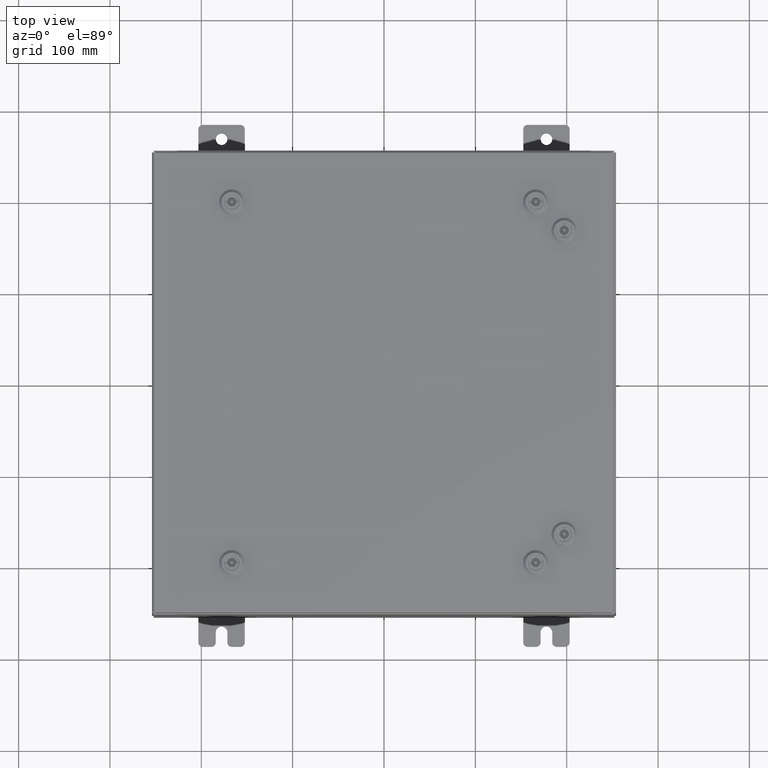
[diagram: clean part render]
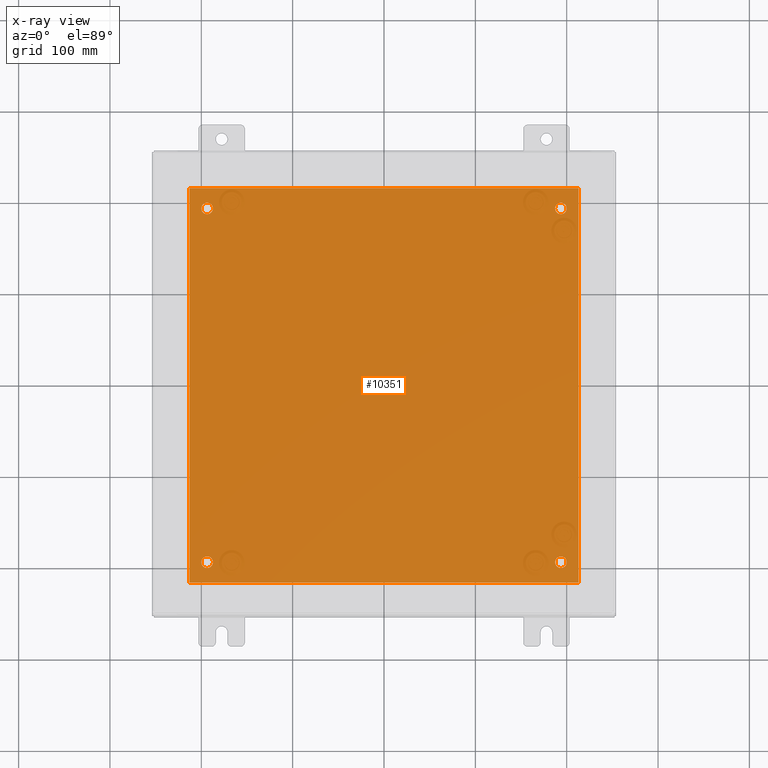
[diagram: x-ray — body ghosted, one internal face saturated and labeled with its STEP entity id]
A machine part, top view, then the same camera in x-ray: the body is ghosted and one INTERNAL B-rep face — a face not visible from any outside direction — is saturated and labeled: STEP entity #10351.
In plain terms, the highlighted planar face has unit normal (0, 0, -1).
Its self-contained STEP definition (entity closure, byte-faithful):
#15 = VERTEX_POINT ( 'NONE', #35535 ) ;
#112 = ORIENTED_EDGE ( 'NONE', *, *, #51335, .T. ) ;
#413 = AXIS2_PLACEMENT_3D ( 'NONE', #30554, #1214, #35512 ) ;
#1214 = DIRECTION ( 'NONE',  ( -0.0000000000000000000, -0.0000000000000000000, 1.000000000000000000 ) ) ;
#1228 = VECTOR ( 'NONE', #14413, 39.37007874015748100 ) ;
#2297 = AXIS2_PLACEMENT_3D ( 'NONE', #19040, #53398, #24009 ) ;
#2856 = CARTESIAN_POINT ( 'NONE',  ( 0.0000000000000000000, 0.0000000000000000000, -0.1039999999999999800 ) ) ;
#4345 = ORIENTED_EDGE ( 'NONE', *, *, #31679, .T. ) ;
#5401 = FACE_BOUND ( 'NONE', #41860, .T. ) ;
#5861 = VERTEX_POINT ( 'NONE', #35773 ) ;
#6869 = LINE ( 'NONE', #55469, #31421 ) ;
#7785 = DIRECTION ( 'NONE',  ( 0.0000000000000000000, 0.0000000000000000000, -1.000000000000000000 ) ) ;
#9206 = VERTEX_POINT ( 'NONE', #40431 ) ;
#9471 = LINE ( 'NONE', #13488, #50135 ) ;
#9837 = CARTESIAN_POINT ( 'NONE',  ( -7.625000000000001800, 7.625000000000000900, -0.1039999999999999800 ) ) ;
#10346 = AXIS2_PLACEMENT_3D ( 'NONE', #9837, #44169, #14768 ) ;
#10351 = ADVANCED_FACE ( 'NONE', ( #31512, #5401, #33049, #56088, #43041 ), #32208, .T. ) ;
#10611 = LINE ( 'NONE', #52810, #59708 ) ;
#10802 = DIRECTION ( 'NONE',  ( -0.0000000000000000000, -0.0000000000000000000, 1.000000000000000000 ) ) ;
#11253 = ORIENTED_EDGE ( 'NONE', *, *, #47111, .T. ) ;
#12789 = CARTESIAN_POINT ( 'NONE',  ( -7.625000000000001800, -7.625000000000000900, -0.1039999999999999800 ) ) ;
#13124 = ORIENTED_EDGE ( 'NONE', *, *, #24330, .F. ) ;
#13488 = CARTESIAN_POINT ( 'NONE',  ( -8.382999999999999100, 8.500000000000000000, -0.1039999999999998100 ) ) ;
#13618 = ORIENTED_EDGE ( 'NONE', *, *, #28149, .T. ) ;
#13635 = ORIENTED_EDGE ( 'NONE', *, *, #47293, .F. ) ;
#14123 = CARTESIAN_POINT ( 'NONE',  ( 7.625000000000001800, -7.625000000000000900, -0.1039999999999999800 ) ) ;
#14134 = EDGE_LOOP ( 'NONE', ( #13635, #13124, #49464, #49082 ) ) ;
#14413 = DIRECTION ( 'NONE',  ( -1.000000000000000000, -0.0000000000000000000, -0.0000000000000000000 ) ) ;
#14768 = DIRECTION ( 'NONE',  ( -1.000000000000000000, 0.0000000000000000000, 0.0000000000000000000 ) ) ;
#16836 = CIRCLE ( 'NONE', #2297, 0.2499999999999987000 ) ;
#17139 = AXIS2_PLACEMENT_3D ( 'NONE', #17431, #51757, #22367 ) ;
#17431 = CARTESIAN_POINT ( 'NONE',  ( 7.625000000000001800, -7.625000000000000900, -0.1039999999999999800 ) ) ;
#17710 = DIRECTION ( 'NONE',  ( -1.000000000000000000, 0.0000000000000000000, 0.0000000000000000000 ) ) ;
#18006 = VERTEX_POINT ( 'NONE', #60149 ) ;
#19009 = DIRECTION ( 'NONE',  ( -1.000000000000000000, 0.0000000000000000000, 0.0000000000000000000 ) ) ;
#19040 = CARTESIAN_POINT ( 'NONE',  ( 7.625000000000001800, 7.625000000000000900, -0.1039999999999999800 ) ) ;
#19708 = CARTESIAN_POINT ( 'NONE',  ( -7.875000000000001800, -7.625000000000000900, -0.1039999999999999800 ) ) ;
#21319 = CARTESIAN_POINT ( 'NONE',  ( 8.383000000000000900, 8.500000000000000000, -0.1039999999999999800 ) ) ;
#22162 = DIRECTION ( 'NONE',  ( -0.0000000000000000000, -0.0000000000000000000, 1.000000000000000000 ) ) ;
#22367 = DIRECTION ( 'NONE',  ( -1.000000000000000000, 0.0000000000000000000, 0.0000000000000000000 ) ) ;
#22500 = CIRCLE ( 'NONE', #62503, 0.2499999999999998100 ) ;
#24009 = DIRECTION ( 'NONE',  ( -1.000000000000000000, 0.0000000000000000000, 0.0000000000000000000 ) ) ;
#24330 = EDGE_CURVE ( 'NONE', #18006, #9206, #9471, .T. ) ;
#24729 = VERTEX_POINT ( 'NONE', #39564 ) ;
#26106 = ORIENTED_EDGE ( 'NONE', *, *, #46921, .T. ) ;
#26281 = EDGE_LOOP ( 'NONE', ( #42428, #26106 ) ) ;
#27117 = VERTEX_POINT ( 'NONE', #19708 ) ;
#27617 = CIRCLE ( 'NONE', #46739, 0.2499999999999987000 ) ;
#28149 = EDGE_CURVE ( 'NONE', #36130, #15, #27617, .T. ) ;
#28526 = EDGE_CURVE ( 'NONE', #45269, #36375, #6869, .T. ) ;
#28611 = CARTESIAN_POINT ( 'NONE',  ( 8.383000000000000900, -8.499999999999998200, -0.1039999999999999800 ) ) ;
#28713 = VERTEX_POINT ( 'NONE', #63458 ) ;
#30554 = CARTESIAN_POINT ( 'NONE',  ( 7.625000000000001800, 7.625000000000000900, -0.1039999999999999800 ) ) ;
#31010 = DIRECTION ( 'NONE',  ( 0.0000000000000000000, 1.000000000000000000, 0.0000000000000000000 ) ) ;
#31421 = VECTOR ( 'NONE', #31010, 39.37007874015748100 ) ;
#31493 = AXIS2_PLACEMENT_3D ( 'NONE', #40210, #10802, #45112 ) ;
#31512 = FACE_BOUND ( 'NONE', #26281, .T. ) ;
#31679 = EDGE_CURVE ( 'NONE', #24729, #34115, #54263, .T. ) ;
#31694 = CARTESIAN_POINT ( 'NONE',  ( -8.500000000000000000, 8.500000000000000000, -0.1039999999999999800 ) ) ;
#32208 = PLANE ( 'NONE',  #42051 ) ;
#33049 = FACE_BOUND ( 'NONE', #52762, .T. ) ;
#34115 = VERTEX_POINT ( 'NONE', #60740 ) ;
#35512 = DIRECTION ( 'NONE',  ( -1.000000000000000000, 0.0000000000000000000, 0.0000000000000000000 ) ) ;
#35535 = CARTESIAN_POINT ( 'NONE',  ( 7.875000000000000900, -7.625000000000000900, -0.1039999999999999800 ) ) ;
#35773 = CARTESIAN_POINT ( 'NONE',  ( 7.875000000000000900, 7.625000000000000900, -0.1039999999999999800 ) ) ;
#35962 = EDGE_LOOP ( 'NONE', ( #4345, #36679 ) ) ;
#36130 = VERTEX_POINT ( 'NONE', #49244 ) ;
#36375 = VERTEX_POINT ( 'NONE', #21319 ) ;
#36679 = ORIENTED_EDGE ( 'NONE', *, *, #42139, .T. ) ;
#38110 = ORIENTED_EDGE ( 'NONE', *, *, #59387, .T. ) ;
#38347 = EDGE_CURVE ( 'NONE', #36375, #18006, #38848, .T. ) ;
#38848 = LINE ( 'NONE', #31694, #1228 ) ;
#39564 = CARTESIAN_POINT ( 'NONE',  ( -7.375000000000001800, 7.625000000000000900, -0.1039999999999999800 ) ) ;
#40210 = CARTESIAN_POINT ( 'NONE',  ( -7.625000000000001800, -7.625000000000000900, -0.1039999999999999800 ) ) ;
#40431 = CARTESIAN_POINT ( 'NONE',  ( -8.382999999999999100, -8.499999999999998200, -0.1039999999999998100 ) ) ;
#41860 = EDGE_LOOP ( 'NONE', ( #11253, #13618 ) ) ;
#42051 = AXIS2_PLACEMENT_3D ( 'NONE', #2856, #7785, #42110 ) ;
#42110 = DIRECTION ( 'NONE',  ( -1.000000000000000000, 0.0000000000000000000, -0.0000000000000000000 ) ) ;
#42139 = EDGE_CURVE ( 'NONE', #34115, #24729, #54043, .T. ) ;
#42428 = ORIENTED_EDGE ( 'NONE', *, *, #53548, .T. ) ;
#43041 = FACE_OUTER_BOUND ( 'NONE', #14134, .T. ) ;
#44169 = DIRECTION ( 'NONE',  ( -0.0000000000000000000, -0.0000000000000000000, 1.000000000000000000 ) ) ;
#45112 = DIRECTION ( 'NONE',  ( -1.000000000000000000, 0.0000000000000000000, 0.0000000000000000000 ) ) ;
#45269 = VERTEX_POINT ( 'NONE', #28611 ) ;
#46739 = AXIS2_PLACEMENT_3D ( 'NONE', #14123, #48431, #19009 ) ;
#46921 = EDGE_CURVE ( 'NONE', #27117, #28713, #55903, .T. ) ;
#47111 = EDGE_CURVE ( 'NONE', #15, #36130, #62777, .T. ) ;
#47127 = DIRECTION ( 'NONE',  ( -0.0000000000000000000, -0.0000000000000000000, 1.000000000000000000 ) ) ;
#47293 = EDGE_CURVE ( 'NONE', #9206, #45269, #10611, .T. ) ;
#48431 = DIRECTION ( 'NONE',  ( -0.0000000000000000000, -0.0000000000000000000, 1.000000000000000000 ) ) ;
#49082 = ORIENTED_EDGE ( 'NONE', *, *, #28526, .F. ) ;
#49084 = CARTESIAN_POINT ( 'NONE',  ( 7.375000000000003600, 7.625000000000000900, -0.1039999999999999800 ) ) ;
#49244 = CARTESIAN_POINT ( 'NONE',  ( 7.375000000000003600, -7.625000000000000900, -0.1039999999999999800 ) ) ;
#49464 = ORIENTED_EDGE ( 'NONE', *, *, #38347, .F. ) ;
#50135 = VECTOR ( 'NONE', #52738, 39.37007874015748100 ) ;
#51335 = EDGE_CURVE ( 'NONE', #5861, #59525, #57946, .T. ) ;
#51558 = CARTESIAN_POINT ( 'NONE',  ( -7.625000000000001800, 7.625000000000000900, -0.1039999999999999800 ) ) ;
#51757 = DIRECTION ( 'NONE',  ( -0.0000000000000000000, -0.0000000000000000000, 1.000000000000000000 ) ) ;
#52738 = DIRECTION ( 'NONE',  ( 0.0000000000000000000, -1.000000000000000000, 0.0000000000000000000 ) ) ;
#52762 = EDGE_LOOP ( 'NONE', ( #112, #38110 ) ) ;
#52810 = CARTESIAN_POINT ( 'NONE',  ( -8.500000000000000000, -8.499999999999998200, -0.1039999999999999800 ) ) ;
#53398 = DIRECTION ( 'NONE',  ( -0.0000000000000000000, -0.0000000000000000000, 1.000000000000000000 ) ) ;
#53548 = EDGE_CURVE ( 'NONE', #28713, #27117, #22500, .T. ) ;
#54043 = CIRCLE ( 'NONE', #10346, 0.2499999999999998100 ) ;
#54263 = CIRCLE ( 'NONE', #58729, 0.2499999999999998100 ) ;
#55469 = CARTESIAN_POINT ( 'NONE',  ( 8.383000000000000900, -8.499999999999998200, -0.1039999999999998100 ) ) ;
#55903 = CIRCLE ( 'NONE', #31493, 0.2499999999999998100 ) ;
#56088 = FACE_BOUND ( 'NONE', #35962, .T. ) ;
#56476 = DIRECTION ( 'NONE',  ( -1.000000000000000000, 0.0000000000000000000, 0.0000000000000000000 ) ) ;
#57747 = DIRECTION ( 'NONE',  ( 1.000000000000000000, 0.0000000000000000000, 0.0000000000000000000 ) ) ;
#57946 = CIRCLE ( 'NONE', #413, 0.2499999999999987000 ) ;
#58729 = AXIS2_PLACEMENT_3D ( 'NONE', #51558, #22162, #56476 ) ;
#59387 = EDGE_CURVE ( 'NONE', #59525, #5861, #16836, .T. ) ;
#59525 = VERTEX_POINT ( 'NONE', #49084 ) ;
#59708 = VECTOR ( 'NONE', #57747, 39.37007874015748100 ) ;
#60149 = CARTESIAN_POINT ( 'NONE',  ( -8.382999999999999100, 8.500000000000000000, -0.1039999999999998100 ) ) ;
#60740 = CARTESIAN_POINT ( 'NONE',  ( -7.875000000000001800, 7.625000000000000900, -0.1039999999999999800 ) ) ;
#62503 = AXIS2_PLACEMENT_3D ( 'NONE', #12789, #47127, #17710 ) ;
#62777 = CIRCLE ( 'NONE', #17139, 0.2499999999999987000 ) ;
#63458 = CARTESIAN_POINT ( 'NONE',  ( -7.375000000000001800, -7.625000000000000900, -0.1039999999999999800 ) ) ;